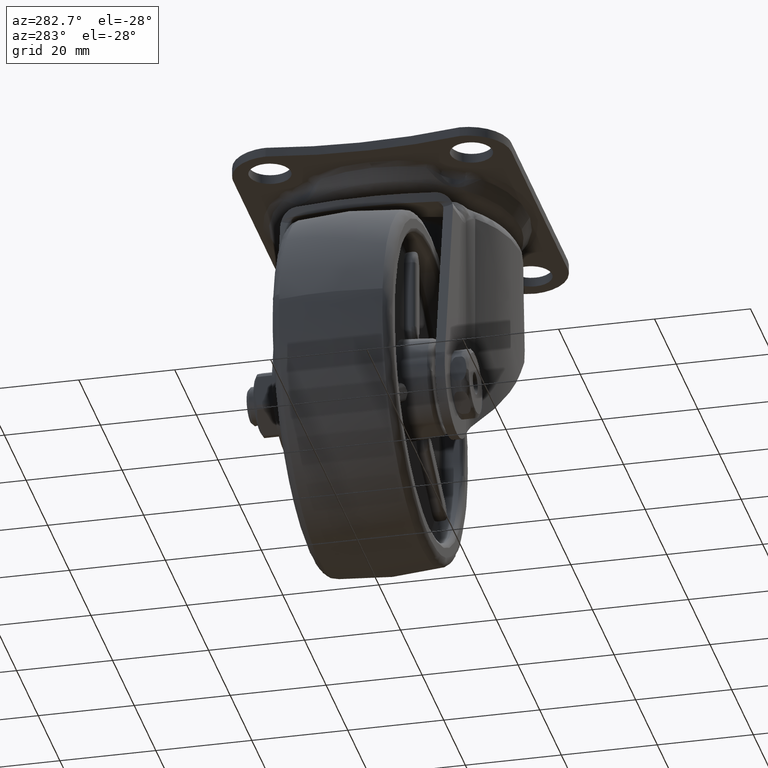
[diagram: clean part render]
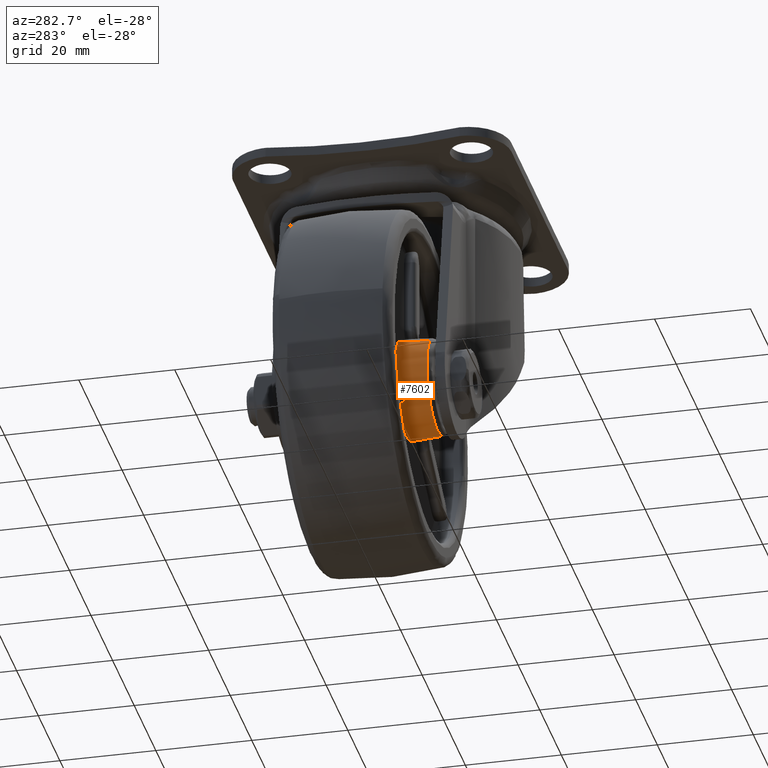
[diagram: same view with one face highlighted and labeled with its STEP entity id]
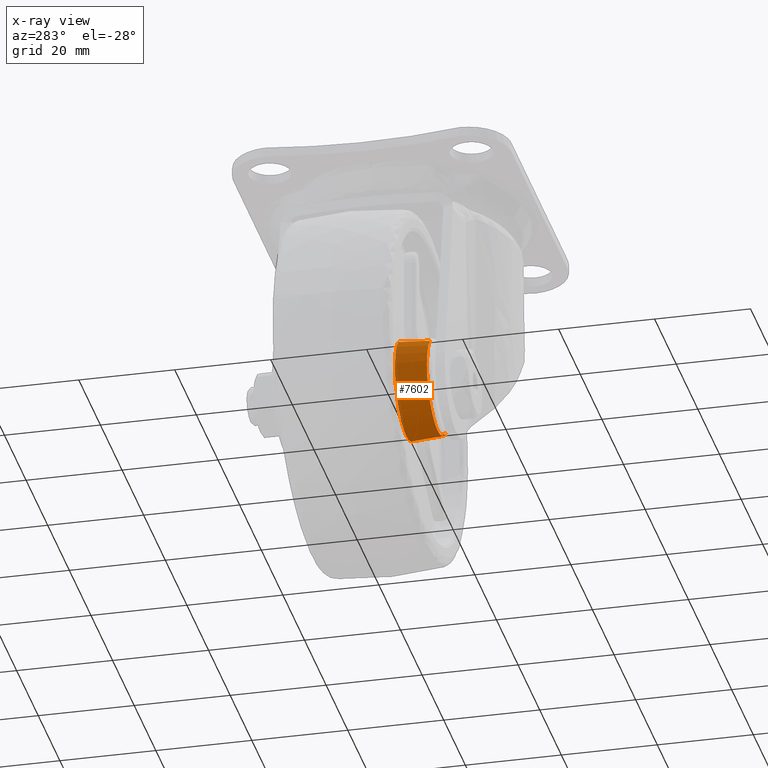
[diagram: x-ray of the same camera — body ghosted, the highlighted face saturated]
A machine part, auxiliary view. The second image highlights one B-rep face of the part: STEP entity #7602.
The next image is the same camera in x-ray: the body ghosted, the highlighted face saturated — about 5% of this face is hidden behind the body in this view.
In plain terms, the highlighted face is a freeform B-spline surface patch.
Its self-contained STEP definition (entity closure, byte-faithful):
#7439=CARTESIAN_POINT('',(-20.869584001672319,-14.233432514162700,-62.491541025510990));
#7440=CARTESIAN_POINT('',(-27.861119027183513,-14.233432514162706,-69.621957023838675));
#7441=CARTESIAN_POINT('',(-34.991535025511190,-14.233432514162700,-62.630421998327478));
#7442=CARTESIAN_POINT('',(-42.121951023838861,-14.233432514162706,-55.638886972816287));
#7443=CARTESIAN_POINT('',(-35.130415998327678,-14.233432514162700,-48.508470974488610));
#7444=CARTESIAN_POINT('',(-20.527731947443030,-7.331664187145933,-62.826734738086472));
#7445=CARTESIAN_POINT('',(-27.854460685529698,-7.331664187145933,-70.299002790643428));
#7446=CARTESIAN_POINT('',(-35.326728738086672,-7.331664187145933,-62.972274052556770));
#7447=CARTESIAN_POINT('',(-42.798996790643635,-7.331664187145933,-55.645545314470105));
#7448=CARTESIAN_POINT('',(-35.472268052556970,-7.331664187145933,-48.173277261913142));
#7456=(BOUNDED_SURFACE()B_SPLINE_SURFACE(2,1,((#7439,#7444),(#7440,#7445),(#7441,#7446),(#7442,#7447),(#7443,#7448)),.UNSPECIFIED.,.F.,.F.,.U.)B_SPLINE_SURFACE_WITH_KNOTS((3,2,3),(2,2),(0.0,17.338941632307840,34.677883264615680),(0.0,6.918354117255261),.UNSPECIFIED.)GEOMETRIC_REPRESENTATION_ITEM()RATIONAL_B_SPLINE_SURFACE(((1.0,1.0),(0.707106781186548,0.707106781186548),(1.0,1.0),(0.707106781186548,0.707106781186548),(1.0,1.0)))REPRESENTATION_ITEM('')SURFACE());
#7457=CARTESIAN_POINT('',(-28.0,-14.069202452085500,-65.497608636636940));
#7458=VERTEX_POINT('',#7457);
#7459=CARTESIAN_POINT('',(-20.861449506450299,-14.069206885902579,-62.499516638697763));
#7460=VERTEX_POINT('',#7459);
#7461=CARTESIAN_POINT('',(-28.0,-14.069202452085500,-65.497608636636940));
#7462=CARTESIAN_POINT('',(-23.801146376738277,-14.069204668994042,-65.497608528969749));
#7463=CARTESIAN_POINT('',(-20.861449506450306,-14.069206885902583,-62.499516638697756));
#7471=(BOUNDED_CURVE()B_SPLINE_CURVE(2,(#7461,#7462,#7463),.UNSPECIFIED.,.F.,.U.)B_SPLINE_CURVE_WITH_KNOTS((3,3),(0.0,0.126483865893653),.UNSPECIFIED.)CURVE()GEOMETRIC_REPRESENTATION_ITEM()RATIONAL_B_SPLINE_CURVE((1.0,0.851814933561756,0.853574027690047))REPRESENTATION_ITEM(''));
#7472=EDGE_CURVE('',#7458,#7460,#7471,.T.);
#7473=ORIENTED_EDGE('',*,*,#7472,.F.);
#7474=CARTESIAN_POINT('',(-37.925639947059317,-14.069202452583539,-56.697390700396113));
#7475=VERTEX_POINT('',#7474);
#7476=CARTESIAN_POINT('',(-37.925639947059331,-14.069202452583543,-56.697390700396113));
#7477=CARTESIAN_POINT('',(-36.864021112014960,-14.069202452085497,-65.497608636636940));
#7478=CARTESIAN_POINT('',(-28.0,-14.069202452085500,-65.497608636636940));
#7486=(BOUNDED_CURVE()B_SPLINE_CURVE(2,(#7476,#7477,#7478),.UNSPECIFIED.,.F.,.U.)B_SPLINE_CURVE_WITH_KNOTS((3,3),(0.770732403717544,1.0),.UNSPECIFIED.)CURVE()GEOMETRIC_REPRESENTATION_ITEM()RATIONAL_B_SPLINE_CURVE((0.955449597713624,0.731396303020834,1.0))REPRESENTATION_ITEM(''));
#7487=EDGE_CURVE('',#7475,#7458,#7486,.T.);
#7488=ORIENTED_EDGE('',*,*,#7487,.F.);
#7489=CARTESIAN_POINT('',(-35.138550493549737,-14.069206885902579,-48.500495361301901));
#7490=VERTEX_POINT('',#7489);
#7491=CARTESIAN_POINT('',(-35.138550493549737,-14.069206885902583,-48.500495361301908));
#7492=CARTESIAN_POINT('',(-37.997602510397265,-14.069205000785104,-51.416340044178149));
#7493=CARTESIAN_POINT('',(-37.997602608468867,-14.069203020784080,-55.500006027619413));
#7494=CARTESIAN_POINT('',(-37.997602622898746,-14.069202729454396,-56.100860838613393));
#7495=CARTESIAN_POINT('',(-37.925639947059324,-14.069202452583548,-56.697390700396113));
#7503=(BOUNDED_CURVE()B_SPLINE_CURVE(2,(#7491,#7492,#7493,#7494,#7495),.UNSPECIFIED.,.F.,.U.)B_SPLINE_CURVE_WITH_KNOTS((3,2,3),(0.626483865893653,0.750000000000000,0.770732403717544),.UNSPECIFIED.)CURVE()GEOMETRIC_REPRESENTATION_ITEM()RATIONAL_B_SPLINE_CURVE((0.853574027690047,0.855291847624792,1.0,0.975710478165714,0.955449597713624))REPRESENTATION_ITEM(''));
#7504=EDGE_CURVE('',#7490,#7475,#7503,.T.);
#7505=ORIENTED_EDGE('',*,*,#7504,.F.);
#7506=CARTESIAN_POINT('',(-35.463930197569717,-7.499999999998803,-48.181452718311121));
#7507=VERTEX_POINT('',#7506);
#7508=CARTESIAN_POINT('',(-35.138550493549737,-14.069206885902579,-48.500495361301901));
#7509=CARTESIAN_POINT('',(-35.463930197569717,-7.499999999998803,-48.181452718311121));
#7510=QUASI_UNIFORM_CURVE('',1,(#7508,#7509),.UNSPECIFIED.,.F.,.U.);
#7511=EDGE_CURVE('',#7490,#7507,#7510,.T.);
#7512=ORIENTED_EDGE('',*,*,#7511,.T.);
#7513=CARTESIAN_POINT('',(-37.235145006145501,-7.500000000000000,-60.397308609250693));
#7514=VERTEX_POINT('',#7513);
#7515=CARTESIAN_POINT('',(-35.463930197569717,-7.499999999998804,-48.181452718311121));
#7516=CARTESIAN_POINT('',(-36.390850042658244,-7.500000000000119,-49.126785047828022));
#7517=CARTESIAN_POINT('',(-37.052823156249701,-7.500000000000119,-50.273356113813009));
#7518=CARTESIAN_POINT('',(-39.946220317058717,-7.500000000000119,-55.284867002809804));
#7519=CARTESIAN_POINT('',(-37.235145006145402,-7.500000000000119,-60.397308609250643));
#7527=(BOUNDED_CURVE()B_SPLINE_CURVE(2,(#7515,#7516,#7517,#7518,#7519),.UNSPECIFIED.,.F.,.U.)B_SPLINE_CURVE_WITH_KNOTS((3,2,3),(0.373389903153090,0.500000000000000,1.0),.UNSPECIFIED.)CURVE()GEOMETRIC_REPRESENTATION_ITEM()RATIONAL_B_SPLINE_CURVE((0.952682718188999,0.968319120702361,1.0,0.874888022019500,1.0))REPRESENTATION_ITEM(''));
#7528=EDGE_CURVE('',#7507,#7514,#7527,.T.);
#7529=ORIENTED_EDGE('',*,*,#7528,.T.);
#7530=CARTESIAN_POINT('',(-37.077778082415101,-9.0,-60.470001203901703));
#7531=VERTEX_POINT('',#7530);
#7532=CARTESIAN_POINT('',(-37.077778082414923,-8.999999999999979,-60.470001203901766));
#7533=CARTESIAN_POINT('',(-37.131727794671342,-8.500269314520102,-60.443647076790917));
#7534=CARTESIAN_POINT('',(-37.184057281757042,-8.000247505359189,-60.419577414880649));
#7535=CARTESIAN_POINT('',(-37.235145006145501,-7.500000000000000,-60.397308609250693));
#7536=QUASI_UNIFORM_CURVE('',3,(#7532,#7533,#7534,#7535),.UNSPECIFIED.,.F.,.U.);
#7537=EDGE_CURVE('',#7531,#7514,#7536,.T.);
#7538=ORIENTED_EDGE('',*,*,#7537,.F.);
#7539=CARTESIAN_POINT('',(-36.936237621789502,-9.440664152484411,-60.659345196482398));
#7540=VERTEX_POINT('',#7539);
#7541=CARTESIAN_POINT('',(-37.077778082415101,-9.0,-60.470001203901703));
#7542=CARTESIAN_POINT('',(-37.073156866340810,-9.042805853450627,-60.472258641629082));
#7543=CARTESIAN_POINT('',(-37.066411212405072,-9.084208353329965,-60.478598726214820));
#7544=CARTESIAN_POINT('',(-37.049130824398823,-9.164542549971106,-60.498423670385129));
#7545=CARTESIAN_POINT('',(-37.038526310341730,-9.203662157374001,-60.512006762664988));
#7546=CARTESIAN_POINT('',(-37.013876770693493,-9.278708506190704,-60.545554099554721));
#7547=CARTESIAN_POINT('',(-37.000110953794596,-9.313869514334199,-60.565124132990121));
#7548=CARTESIAN_POINT('',(-36.970032998788298,-9.380200914212036,-60.608910769789993));
#7549=CARTESIAN_POINT('',(-36.953622760321160,-9.411515714141329,-60.633277232700117));
#7550=CARTESIAN_POINT('',(-36.936237621789367,-9.440664152484299,-60.659345196482420));
#7551=B_SPLINE_CURVE_WITH_KNOTS('',3,(#7541,#7542,#7543,#7544,#7545,#7546,#7547,#7548,#7549,#7550),.UNSPECIFIED.,.F.,.U.,(4,2,2,2,4),(0.0,0.250000000000000,0.500000000000000,0.750000000000000,1.0),.UNSPECIFIED.);
#7552=EDGE_CURVE('',#7531,#7540,#7551,.T.);
#7553=ORIENTED_EDGE('',*,*,#7552,.T.);
#7554=CARTESIAN_POINT('',(-36.843031144473450,-9.0,-60.876594827337797));
#7555=VERTEX_POINT('',#7554);
#7556=CARTESIAN_POINT('',(-36.936237621789502,-9.440664152484411,-60.659345196482398));
#7557=CARTESIAN_POINT('',(-36.922467007749489,-9.411751572235737,-60.687207856756459));
#7558=CARTESIAN_POINT('',(-36.909516529310302,-9.380357796724169,-60.713708425512237));
#7559=CARTESIAN_POINT('',(-36.886593283441719,-9.313931584429144,-60.761735018661433));
#7560=CARTESIAN_POINT('',(-36.876578188613678,-9.278900041782203,-60.783339013970398));
#7561=CARTESIAN_POINT('',(-36.859988450293073,-9.204690380243118,-60.821117946658397));
#7562=CARTESIAN_POINT('',(-36.853394110106429,-9.165114088001861,-60.837378363886572));
#7563=CARTESIAN_POINT('',(-36.844783946265423,-9.084225505017777,-60.862465603149822));
#7564=CARTESIAN_POINT('',(-36.842676362049822,-9.042706281478941,-60.871475952886072));
#7565=CARTESIAN_POINT('',(-36.843031144473450,-9.0,-60.876594827337797));
#7566=B_SPLINE_CURVE_WITH_KNOTS('',3,(#7556,#7557,#7558,#7559,#7560,#7561,#7562,#7563,#7564,#7565),.UNSPECIFIED.,.F.,.U.,(4,2,2,2,4),(0.0,0.250000000000000,0.500000000000000,0.750000000000000,1.0),.UNSPECIFIED.);
#7567=EDGE_CURVE('',#7540,#7555,#7566,.T.);
#7568=ORIENTED_EDGE('',*,*,#7567,.T.);
#7569=CARTESIAN_POINT('',(-36.858760972703898,-7.500000000000000,-61.049224878329312));
#7570=VERTEX_POINT('',#7569);
#7571=CARTESIAN_POINT('',(-36.858760972703898,-7.500000000000000,-61.049224878329312));
#7572=CARTESIAN_POINT('',(-36.852502461897117,-8.000247505359191,-60.993847208372372));
#7573=CARTESIAN_POINT('',(-36.847182657029059,-8.500269314520105,-60.936493712234032));
#7574=CARTESIAN_POINT('',(-36.843031144473407,-8.999999999999986,-60.876594827337676));
#7575=QUASI_UNIFORM_CURVE('',3,(#7571,#7572,#7573,#7574),.UNSPECIFIED.,.F.,.U.);
#7576=EDGE_CURVE('',#7570,#7555,#7575,.T.);
#7577=ORIENTED_EDGE('',*,*,#7576,.F.);
#7578=CARTESIAN_POINT('',(-20.536069802433602,-7.499999999998268,-62.818559281691897));
#7579=VERTEX_POINT('',#7578);
#7580=CARTESIAN_POINT('',(-36.858760972703777,-7.500000000000119,-61.049224878329220));
#7581=CARTESIAN_POINT('',(-33.786794321618153,-7.500000000000119,-65.953305772373454));
#7582=CARTESIAN_POINT('',(-28.0,-7.500000000000119,-65.953305772373454));
#7583=CARTESIAN_POINT('',(-23.609760017836610,-7.500000000000120,-65.953305772373469));
#7584=CARTESIAN_POINT('',(-20.536069802433598,-7.499999999998268,-62.818559281691890));
#7592=(BOUNDED_CURVE()B_SPLINE_CURVE(2,(#7580,#7581,#7582,#7583,#7584),.UNSPECIFIED.,.F.,.U.)B_SPLINE_CURVE_WITH_KNOTS((3,2,3),(0.0,0.500000000000000,0.891142754945505),.UNSPECIFIED.)CURVE()GEOMETRIC_REPRESENTATION_ITEM()RATIONAL_B_SPLINE_CURVE((1.0,0.874888022019497,1.0,0.902126712512049,0.957383134238540))REPRESENTATION_ITEM(''));
#7593=EDGE_CURVE('',#7570,#7579,#7592,.T.);
#7594=ORIENTED_EDGE('',*,*,#7593,.T.);
#7595=CARTESIAN_POINT('',(-20.861449506450299,-14.069206885902579,-62.499516638697763));
#7596=CARTESIAN_POINT('',(-20.536069802433602,-7.499999999998268,-62.818559281691897));
#7597=QUASI_UNIFORM_CURVE('',1,(#7595,#7596),.UNSPECIFIED.,.F.,.U.);
#7598=EDGE_CURVE('',#7460,#7579,#7597,.T.);
#7599=ORIENTED_EDGE('',*,*,#7598,.F.);
#7600=EDGE_LOOP('',(#7473,#7488,#7505,#7512,#7529,#7538,#7553,#7568,#7577,#7594,#7599));
#7601=FACE_OUTER_BOUND('',#7600,.T.);
#7602=ADVANCED_FACE('',(#7601),#7456,.T.);